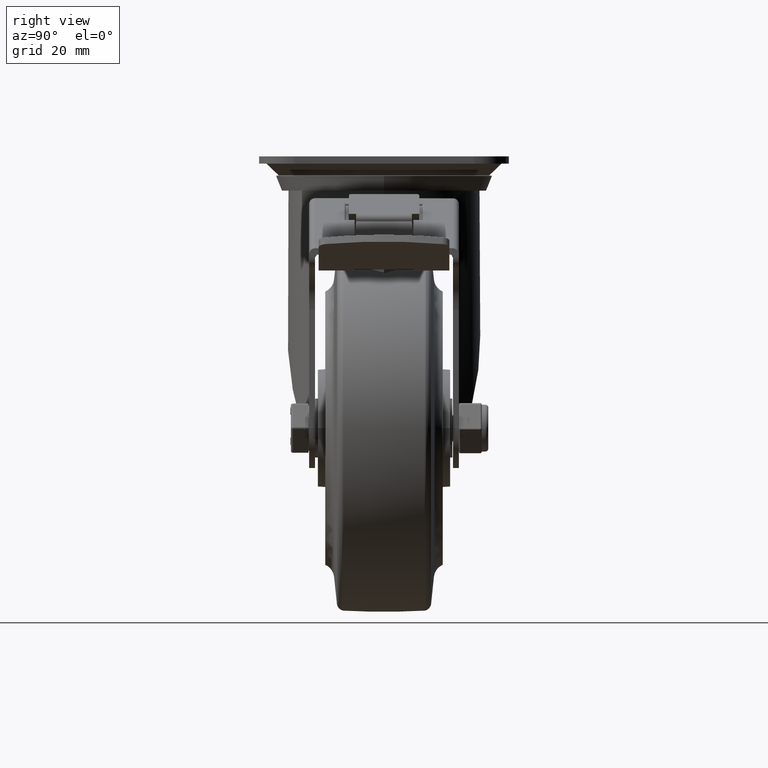
[diagram: clean part render]
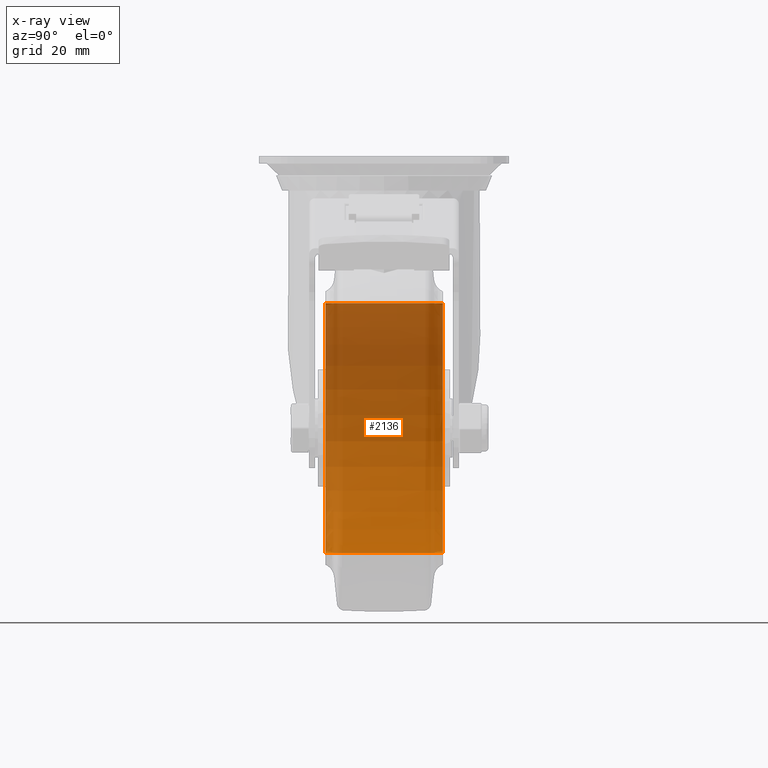
[diagram: x-ray — body ghosted, one internal face saturated and labeled with its STEP entity id]
A machine part, right view, then the same camera in x-ray: the body is ghosted and one INTERNAL B-rep face — a face not visible from any outside direction — is saturated and labeled: STEP entity #2136.
In plain terms, the highlighted cylindrical surface (partial cylindrical patch) has radius 42.5 mm, axis along (0, -1, -0).
Its self-contained STEP definition (entity closure, byte-faithful):
#2136=ADVANCED_FACE('67:3408',(#4070),#4071,.F.);
#4070=FACE_OUTER_BOUND('',#8148,.T.);
#4071=CYLINDRICAL_SURFACE('',#8149,0.0425);
#8148=EDGE_LOOP('',(#18243,#18244,#18245,#18246));
#8149=AXIS2_PLACEMENT_3D('',#18247,#18248,#18249);
#18243=ORIENTED_EDGE('',*,*,#26277,.T.);
#18244=ORIENTED_EDGE('',*,*,#26320,.T.);
#18245=ORIENTED_EDGE('',*,*,#26279,.T.);
#18246=ORIENTED_EDGE('',*,*,#26312,.F.);
#18247=CARTESIAN_POINT('',(-2.22765332997358E-17,-3.46944695195361E-18,2.17168371025307E-47));
#18248=DIRECTION('',(2.48084430602702E-15,-1.0,-4.01205062912757E-31));
#18249=DIRECTION('',(1.61721177720851E-16,0.0,1.0));
#26277=EDGE_CURVE('',#30376,#30377,#30378,.T.);
#26279=EDGE_CURVE('',#30381,#30379,#30382,.T.);
#26312=EDGE_CURVE('67:3414',#30376,#30379,#30435,.T.);
#26320=EDGE_CURVE('67:3444',#30377,#30381,#30443,.T.);
#30376=VERTEX_POINT('',#37146);
#30377=VERTEX_POINT('',#37147);
#30378=LINE('',#37148,#37149);
#30379=VERTEX_POINT('',#37150);
#30381=VERTEX_POINT('',#37152);
#30382=LINE('',#37153,#37154);
#30435=CIRCLE('',#37211,0.0425);
#30443=CIRCLE('',#37219,0.0425);
#37146=CARTESIAN_POINT('',(-7.93132804055926E-17,0.02,0.0425));
#37147=CARTESIAN_POINT('',(4.9567406481555E-17,-0.02,0.0425));
#37148=CARTESIAN_POINT('',(-1.01986343502234E-17,-3.4694469519536E-18,0.0425));
#37149=VECTOR('',#47413,1.0);
#37150=CARTESIAN_POINT('',(-8.39713183697886E-17,0.02,-0.0425));
#37152=CARTESIAN_POINT('',(1.52624538712921E-17,-0.02,-0.0425));
#37153=CARTESIAN_POINT('',(-3.43544322492483E-17,-3.46944695195363E-18,-0.0425));
#37154=VECTOR('',#47417,1.0);
#37211=AXIS2_PLACEMENT_3D('',#47506,#47507,#47508);
#37219=AXIS2_PLACEMENT_3D('',#47530,#47531,#47532);
#47413=DIRECTION('',(2.48084430602702E-15,-1.0,-4.01205062912757E-31));
#47417=DIRECTION('',(-2.48084430602702E-15,1.0,4.01205062912757E-31));
#47506=CARTESIAN_POINT('',(-7.18934194202762E-17,0.02,8.02410125825516E-33));
#47507=DIRECTION('',(2.48084430602702E-15,-1.0,-4.01205062912757E-31));
#47508=DIRECTION('',(1.61721177720851E-16,0.0,1.0));
#47530=CARTESIAN_POINT('',(2.73403528208045E-17,-0.02,-8.02410125825511E-33));
#47531=DIRECTION('',(2.48084430602702E-15,-1.0,-4.01205062912757E-31));
#47532=DIRECTION('',(1.61721177720851E-16,0.0,1.0));